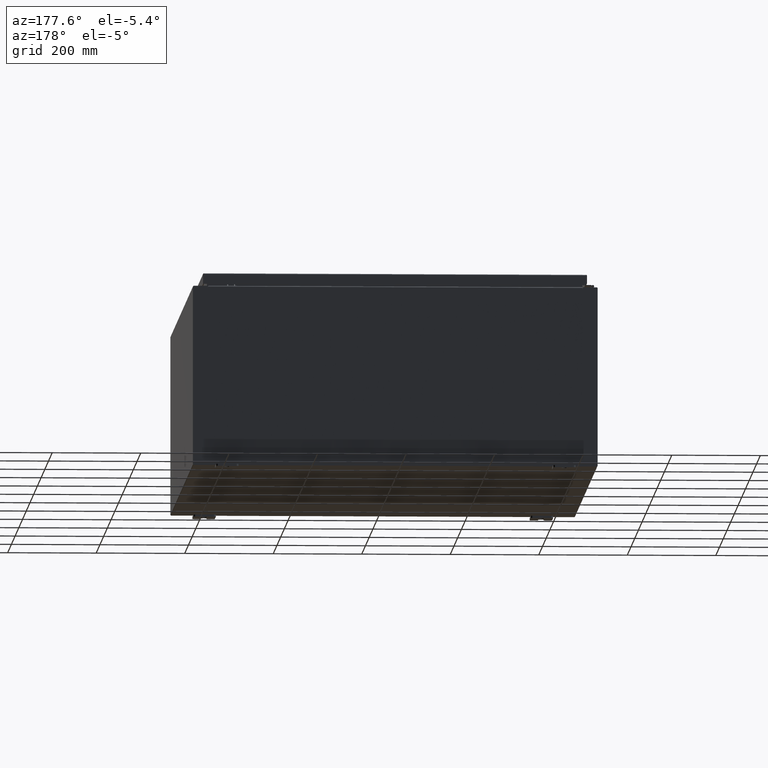
[diagram: clean part render]
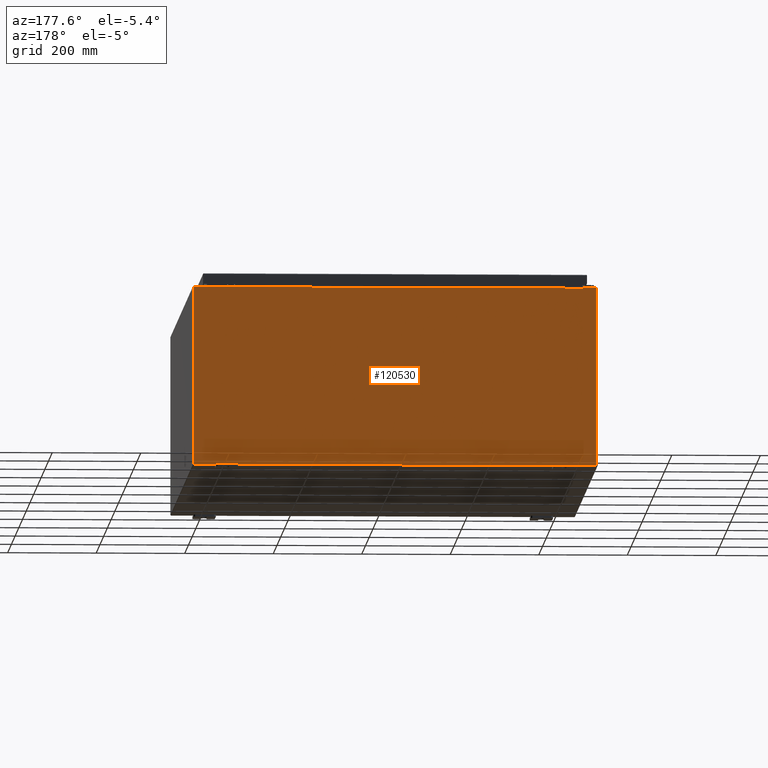
[diagram: same view with one face highlighted and labeled with its STEP entity id]
A machine part, auxiliary view. The second image highlights one B-rep face of the part: STEP entity #120530.
In plain terms, the highlighted planar face has unit normal (0, -1, 0).
Its self-contained STEP definition (entity closure, byte-faithful):
#2452 = LINE ( 'NONE', #23540, #133822 ) ;
#2804 = EDGE_CURVE ( 'NONE', #43738, #59364, #56409, .T. ) ;
#4509 = LINE ( 'NONE', #68195, #111535 ) ;
#4770 = VECTOR ( 'NONE', #73096, 39.37007874015748100 ) ;
#5500 = ORIENTED_EDGE ( 'NONE', *, *, #120515, .T. ) ;
#10392 = FACE_OUTER_BOUND ( 'NONE', #83411, .T. ) ;
#12265 = VERTEX_POINT ( 'NONE', #79268 ) ;
#13624 = LINE ( 'NONE', #88450, #65507 ) ;
#13883 = CARTESIAN_POINT ( 'NONE',  ( 16.67454999999931800, -0.0000000000000000000, -1.447541957108381700E-012 ) ) ;
#14613 = EDGE_CURVE ( 'NONE', #78780, #51903, #72217, .T. ) ;
#15076 = EDGE_CURVE ( 'NONE', #66036, #101195, #98113, .T. ) ;
#16412 = CARTESIAN_POINT ( 'NONE',  ( 16.63720000000000400, 0.0000000000000000000, 7.874950000000001900 ) ) ;
#18687 = AXIS2_PLACEMENT_3D ( 'NONE', #103025, #40924, #113446 ) ;
#19305 = CARTESIAN_POINT ( 'NONE',  ( 17.92530000000000000, 0.0000000000000000000, -7.925299999999997300 ) ) ;
#21423 = CARTESIAN_POINT ( 'NONE',  ( -17.92530000000000000, 0.0000000000000000000, 7.925300000000001800 ) ) ;
#23540 = CARTESIAN_POINT ( 'NONE',  ( -16.63720000000000400, -0.0000000000000000000, 0.0000000000000000000 ) ) ;
#24062 = VERTEX_POINT ( 'NONE', #34356 ) ;
#24920 = VERTEX_POINT ( 'NONE', #16412 ) ;
#25149 = ORIENTED_EDGE ( 'NONE', *, *, #14613, .F. ) ;
#29788 = CARTESIAN_POINT ( 'NONE',  ( -16.63720000000000400, -2.356218894535426900E-015, 7.912300000000008100 ) ) ;
#33947 = DIRECTION ( 'NONE',  ( 0.0000000000000000000, 0.0000000000000000000, -1.000000000000000000 ) ) ;
#34356 = CARTESIAN_POINT ( 'NONE',  ( 17.92530000000000000, 0.0000000000000000000, 7.925300000000000000 ) ) ;
#34725 = VERTEX_POINT ( 'NONE', #109546 ) ;
#35067 = VERTEX_POINT ( 'NONE', #64087 ) ;
#36947 = CARTESIAN_POINT ( 'NONE',  ( -17.92530000000000000, 0.0000000000000000000, -7.925299999999997300 ) ) ;
#40522 = CARTESIAN_POINT ( 'NONE',  ( 16.65587500000000200, 0.0000000000000000000, 7.874950000000001900 ) ) ;
#40924 = DIRECTION ( 'NONE',  ( -0.0000000000000000000, 1.000000000000000000, -0.0000000000000000000 ) ) ;
#43738 = VERTEX_POINT ( 'NONE', #79915 ) ;
#47162 = DIRECTION ( 'NONE',  ( 0.0000000000000000000, -1.000000000000000000, 0.0000000000000000000 ) ) ;
#47505 = EDGE_CURVE ( 'NONE', #34725, #35067, #133311, .T. ) ;
#48765 = DIRECTION ( 'NONE',  ( 0.0000000000000000000, 0.0000000000000000000, 1.000000000000000000 ) ) ;
#49467 = VECTOR ( 'NONE', #52524, 39.37007874015748100 ) ;
#50954 = DIRECTION ( 'NONE',  ( 0.0000000000000000000, 0.0000000000000000000, -1.000000000000000000 ) ) ;
#51292 = LINE ( 'NONE', #36947, #106446 ) ;
#51903 = VERTEX_POINT ( 'NONE', #78576 ) ;
#52524 = DIRECTION ( 'NONE',  ( 1.000000000000000000, 0.0000000000000000000, 0.0000000000000000000 ) ) ;
#52942 = LINE ( 'NONE', #58475, #132449 ) ;
#53812 = VECTOR ( 'NONE', #124095, 39.37007874015748100 ) ;
#56409 = LINE ( 'NONE', #13883, #132641 ) ;
#57160 = ORIENTED_EDGE ( 'NONE', *, *, #59301, .F. ) ;
#58031 = DIRECTION ( 'NONE',  ( 0.0000000000000000000, 0.0000000000000000000, 1.000000000000000000 ) ) ;
#58475 = CARTESIAN_POINT ( 'NONE',  ( 16.63720000000000400, 0.0000000000000000000, 0.0000000000000000000 ) ) ;
#59132 = ORIENTED_EDGE ( 'NONE', *, *, #113816, .F. ) ;
#59301 = EDGE_CURVE ( 'NONE', #51903, #35067, #80314, .T. ) ;
#59364 = VERTEX_POINT ( 'NONE', #122184 ) ;
#61968 = CARTESIAN_POINT ( 'NONE',  ( -17.92530000000000000, 0.0000000000000000000, 7.925300000000001800 ) ) ;
#64087 = CARTESIAN_POINT ( 'NONE',  ( -16.67455000000000000, 0.0000000000000000000, 7.925300000000001800 ) ) ;
#65507 = VECTOR ( 'NONE', #98861, 39.37007874015748100 ) ;
#65731 = VECTOR ( 'NONE', #48765, 39.37007874015748100 ) ;
#66036 = VERTEX_POINT ( 'NONE', #29788 ) ;
#66381 = LINE ( 'NONE', #21423, #4770 ) ;
#67688 = EDGE_CURVE ( 'NONE', #12265, #34725, #66381, .T. ) ;
#68195 = CARTESIAN_POINT ( 'NONE',  ( -17.92530000000000000, 0.0000000000000000000, 7.925300000000001800 ) ) ;
#69220 = EDGE_CURVE ( 'NONE', #43738, #24062, #4509, .T. ) ;
#71266 = ORIENTED_EDGE ( 'NONE', *, *, #2804, .F. ) ;
#72217 = CIRCLE ( 'NONE', #18687, 0.01867499999999949400 ) ;
#72464 = VERTEX_POINT ( 'NONE', #19305 ) ;
#73096 = DIRECTION ( 'NONE',  ( -0.0000000000000000000, -0.0000000000000000000, 1.000000000000000000 ) ) ;
#77746 = AXIS2_PLACEMENT_3D ( 'NONE', #109293, #47162, #119719 ) ;
#77751 = ORIENTED_EDGE ( 'NONE', *, *, #96934, .F. ) ;
#77920 = ORIENTED_EDGE ( 'NONE', *, *, #96671, .T. ) ;
#78001 = PLANE ( 'NONE',  #77746 ) ;
#78576 = CARTESIAN_POINT ( 'NONE',  ( -16.67455000000000000, 0.0000000000000000000, 7.874950000000001900 ) ) ;
#78780 = VERTEX_POINT ( 'NONE', #93749 ) ;
#79268 = CARTESIAN_POINT ( 'NONE',  ( -17.92530000000000000, 0.0000000000000000000, -7.925299999999997300 ) ) ;
#79915 = CARTESIAN_POINT ( 'NONE',  ( 16.67455000000000700, 0.0000000000000000000, 7.925300000000000000 ) ) ;
#80314 = LINE ( 'NONE', #110870, #65731 ) ;
#82677 = DIRECTION ( 'NONE',  ( 1.000000000000000000, 0.0000000000000000000, -6.096072018129154100E-017 ) ) ;
#83411 = EDGE_LOOP ( 'NONE', ( #57160, #25149, #99857, #132935, #59132, #77751, #71266, #88700, #5500, #77920, #120989, #126025 ) ) ;
#88450 = CARTESIAN_POINT ( 'NONE',  ( 17.92530000000000000, 0.0000000000000000000, 7.925300000000000000 ) ) ;
#88700 = ORIENTED_EDGE ( 'NONE', *, *, #69220, .T. ) ;
#89220 = CARTESIAN_POINT ( 'NONE',  ( 16.63720000000000400, 0.0000000000000000000, 7.912300000000001900 ) ) ;
#90228 = CIRCLE ( 'NONE', #118251, 0.01867499999999949400 ) ;
#93749 = CARTESIAN_POINT ( 'NONE',  ( -16.63720000000000400, -0.0000000000000000000, 7.874950000000001900 ) ) ;
#94709 = CARTESIAN_POINT ( 'NONE',  ( -16.63720000000000400, -2.356218894535426900E-015, 7.912300000000008100 ) ) ;
#96671 = EDGE_CURVE ( 'NONE', #72464, #12265, #51292, .T. ) ;
#96934 = EDGE_CURVE ( 'NONE', #59364, #24920, #90228, .T. ) ;
#98113 = LINE ( 'NONE', #94709, #49467 ) ;
#98861 = DIRECTION ( 'NONE',  ( 0.0000000000000000000, 0.0000000000000000000, -1.000000000000000000 ) ) ;
#99448 = EDGE_CURVE ( 'NONE', #66036, #78780, #2452, .T. ) ;
#99857 = ORIENTED_EDGE ( 'NONE', *, *, #99448, .F. ) ;
#101195 = VERTEX_POINT ( 'NONE', #89220 ) ;
#103025 = CARTESIAN_POINT ( 'NONE',  ( -16.65587500000000200, 0.0000000000000000000, 7.874950000000001900 ) ) ;
#106446 = VECTOR ( 'NONE', #109510, 39.37007874015748100 ) ;
#107266 = DIRECTION ( 'NONE',  ( -8.681145560800387200E-014, 0.0000000000000000000, -1.000000000000000000 ) ) ;
#109293 = CARTESIAN_POINT ( 'NONE',  ( 0.0000000000000000000, 0.0000000000000000000, 0.0000000000000000000 ) ) ;
#109510 = DIRECTION ( 'NONE',  ( -1.000000000000000000, -0.0000000000000000000, -0.0000000000000000000 ) ) ;
#109546 = CARTESIAN_POINT ( 'NONE',  ( -17.92530000000000000, 0.0000000000000000000, 7.925300000000001800 ) ) ;
#110870 = CARTESIAN_POINT ( 'NONE',  ( -16.67455000000000000, -0.0000000000000000000, 0.0000000000000000000 ) ) ;
#111535 = VECTOR ( 'NONE', #82677, 39.37007874015748100 ) ;
#113042 = DIRECTION ( 'NONE',  ( -0.0000000000000000000, 1.000000000000000000, -0.0000000000000000000 ) ) ;
#113446 = DIRECTION ( 'NONE',  ( 0.0000000000000000000, 0.0000000000000000000, -1.000000000000000000 ) ) ;
#113816 = EDGE_CURVE ( 'NONE', #24920, #101195, #52942, .T. ) ;
#118251 = AXIS2_PLACEMENT_3D ( 'NONE', #40522, #113042, #50954 ) ;
#119719 = DIRECTION ( 'NONE',  ( 0.0000000000000000000, -0.0000000000000000000, -1.000000000000000000 ) ) ;
#120515 = EDGE_CURVE ( 'NONE', #24062, #72464, #13624, .T. ) ;
#120530 = ADVANCED_FACE ( 'NONE', ( #10392 ), #78001, .F. ) ;
#120989 = ORIENTED_EDGE ( 'NONE', *, *, #67688, .T. ) ;
#122184 = CARTESIAN_POINT ( 'NONE',  ( 16.67455000000000000, 0.0000000000000000000, 7.874950000000001900 ) ) ;
#124095 = DIRECTION ( 'NONE',  ( 1.000000000000000000, 0.0000000000000000000, -6.096072018129154100E-017 ) ) ;
#126025 = ORIENTED_EDGE ( 'NONE', *, *, #47505, .T. ) ;
#132449 = VECTOR ( 'NONE', #58031, 39.37007874015748100 ) ;
#132641 = VECTOR ( 'NONE', #107266, 39.37007874015748100 ) ;
#132935 = ORIENTED_EDGE ( 'NONE', *, *, #15076, .T. ) ;
#133311 = LINE ( 'NONE', #61968, #53812 ) ;
#133822 = VECTOR ( 'NONE', #33947, 39.37007874015748100 ) ;